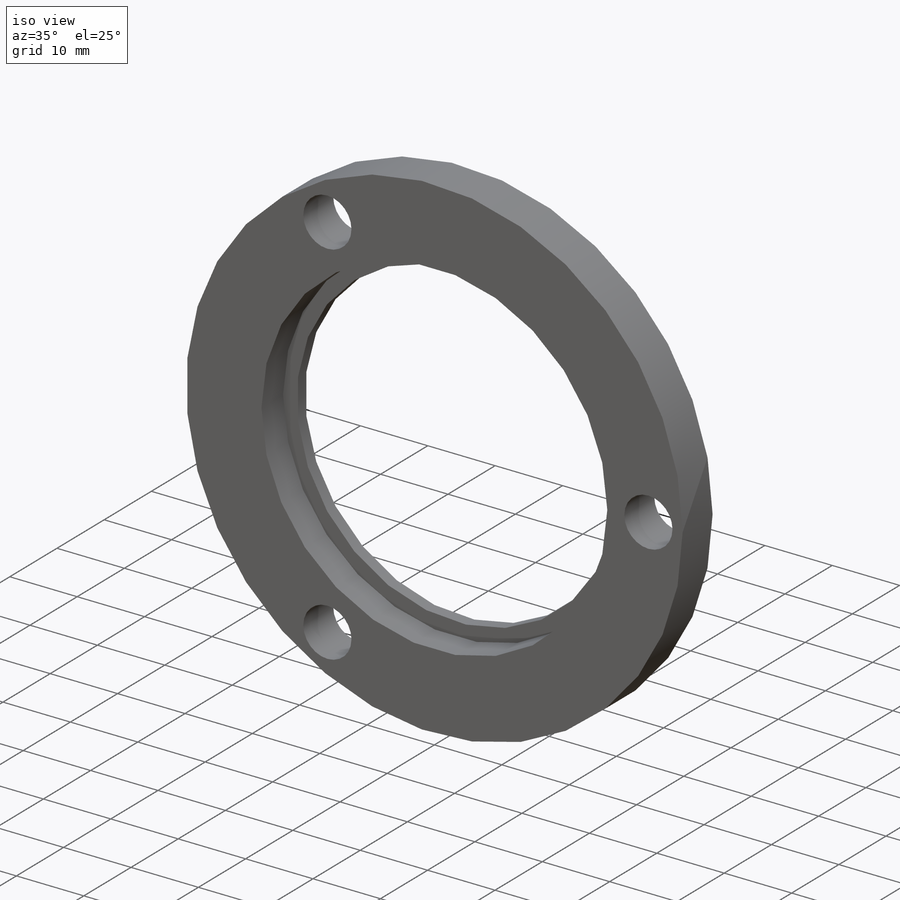
[diagram: iso view]
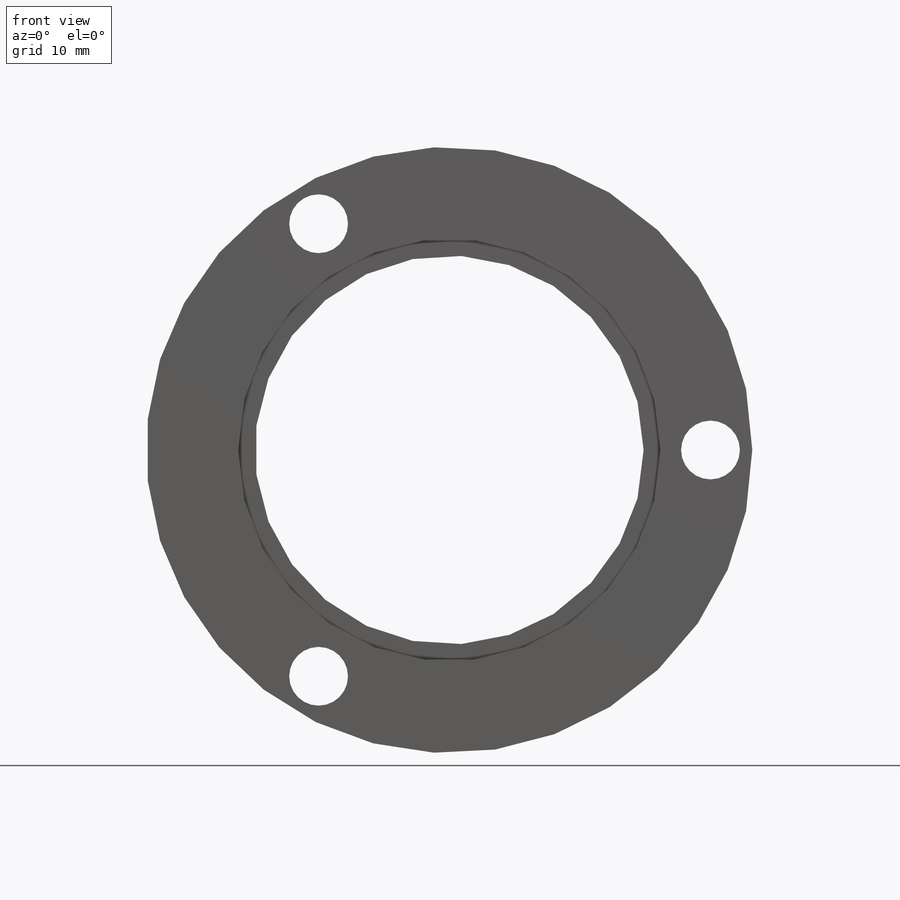
[diagram: front view]
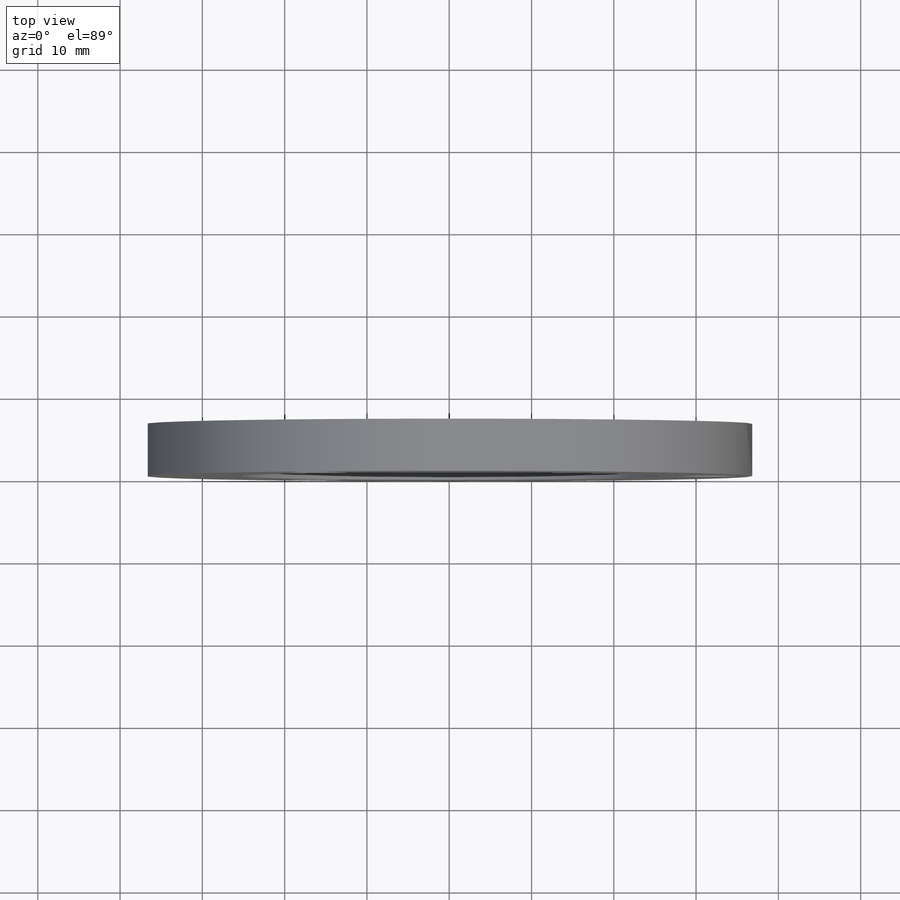
[diagram: top view]
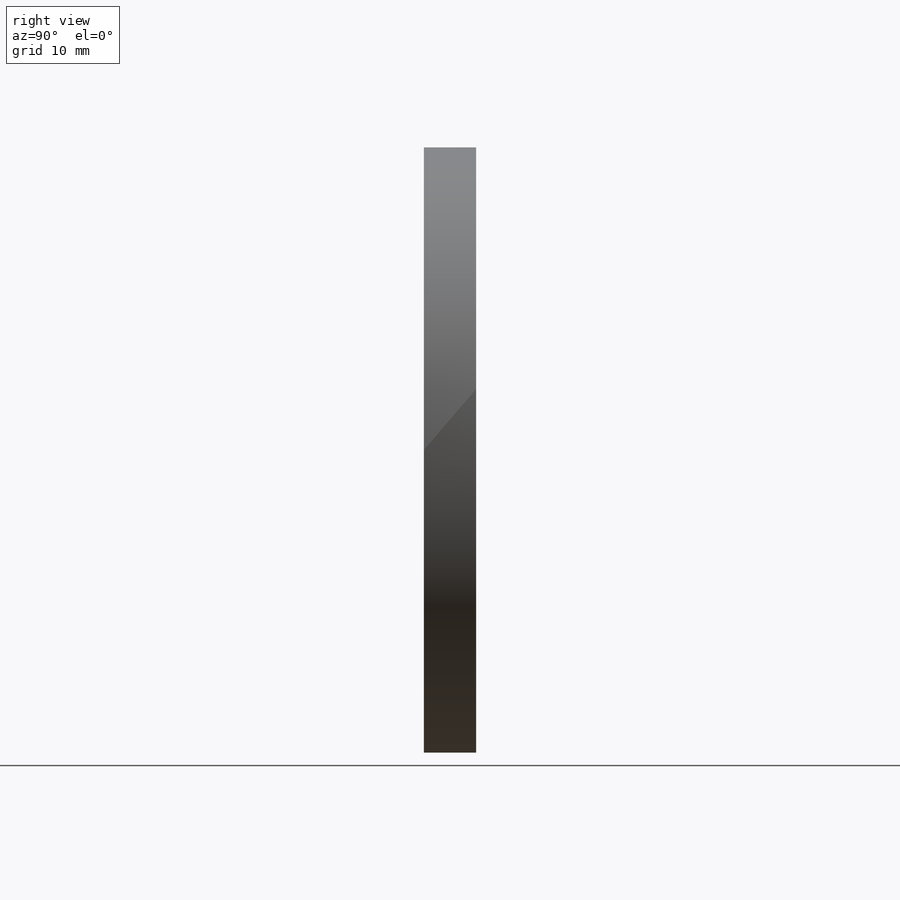
[diagram: right view]
SOLIDWORKS PART (.sldprt)
format: sldprt  version: not decoded by parser v0  size: 372,224 bytes
history: native  units: mm
features: sketch x4, material x1, extrude x1, cut_extrude x1, hole x1 + 1 further entry (+11 scaffold rows collapsed)
feature tree (20):
  scaffold x11  (default folders/planes/origin — collapsed)
  material  "6061-T6 Al"
  "Origin"  ID=392984584
  sketch  "Sketch"  dims[c1.D5=3.048mm c1.D6=3.048mm c1.D7=~1.947748mm c2.D6=3.048mm c2.D7=~2.392707mm c2.D5=2.8448mm c3.D6=3.048mm c3.D7=3.048mm c3.D8=1.5875mm c3.D9=4.7625mm c3.D10=2.54mm c3.D12=3.048mm c3.D13=6.604mm c3.D16=1.5875mm c3.D19=~2.38125mm c4.D9=3.175mm c4.D19=3.048mm c4.D22=2.54mm c4.D23=5.4102mm c4.D14=2.54mm c4.D3=990.6mm c4.D4=990.6mm c5.D3=990.6mm c5.D1=990.6mm c5.D2=917.575mm c6.D1=807.72mm c6.D2=12.7mm c6.D4=12.7mm c6.D5=38.1mm c6.D6=340.36mm c6.D7=38.1mm c6.D8=340.36mm c7.D7=6.35mm c7.D2=51.308mm c7.D3=73.66mm c7.D4=6.35mm c7.D5=47.244mm c7.D1=~102.901114mm c8.D2=~79.998856mm c8.D1=46.228mm c9.D2=57.15mm c9.D3=~35.706034mm c9.D4=~31.234425mm c10.D3=40.64mm c10.D4=40.64mm c10.D6=3.81mm c10.D7=6.096mm c11.D6=3.81mm c11.D7=3.048mm c11.D5=3.81mm c12.D7=~49.253342mm c12.D8=~37.691316mm c13.D7=50.8mm c13.D8=40.64mm c13.D6=33.02mm c14.D7=35.56mm c14.D1=50.8mm c14.D4=45.72mm c14.D8=~4.213439mm c15.D8=45.0deg c15.D10=0.254mm c15.D12=6.096mm c15.D14=6.223mm c15.D15=1.778mm c15.D16=1.524mm c15.D17=1.524mm c15.D18=57.15mm c15.D19=~0.697452mm c15.D20=~41.386999mm c16.D19=~0.697452mm c16.D8=~34.56784mm c17.D8=45.0deg c17.D20=~36.155415mm c17.D21=2.159mm c17.D22=~4.15925mm c18.D21=2.159mm c18.D15=1.143mm c18.D12=3.556mm c18.D19=3.556mm c18.D20=46.482mm c19.D21=46.482mm c19.D12=3.81mm c19.D19=3.81mm c19.D24=0.381mm c19.D6=0.508mm c19.D11=1.143mm c19.D14=~3.950315mm c19.D8=135.0deg c19.D17=~3.592102mm c20.D8=~5.586589mm c21.D8=45.0deg c21.D14=~30.176994mm c22.D14=135.0deg c22.D17=~5.930302mm c22.D8=135.0deg c23.D14=~3.592102mm c23.D8=~2.435377mm c24.D8=45.0deg c24.D14=0.508mm c24.D6=0.508mm c24.D17=47.244mm c24.D1=571.5mm c24.D2=304.8mm c24.D3=279.4mm c24.D4=279.4mm c24.D5=19.05mm c25.D6=19.05mm c25.D5=19.05mm c26.D6=19.05mm c26.D5=19.05mm c27.D6=19.05mm c27.D5=19.05mm c28.D6=~34.655305mm c28.D5=~34.655305mm c29.D6=~34.655305mm c29.D5=~34.655305mm c30.D6=~34.655305mm c30.D5=~34.655305mm c31.D6=12.7mm c31.D5=12.7mm c32.D6=12.7mm c32.D5=12.7mm c32.D3=25.4mm c32.D4=~35.921024mm c33.D5=25.4mm c33.D3=38.1mm c33.D4=42.9895mm c34.D5=304.8mm c34.D6=279.4mm c34.D7=279.4mm c35.D6=279.4mm c35.D7=279.4mm c36.D6=279.4mm c36.D7=279.4mm c37.D6=279.4mm c37.D7=279.4mm c38.D6=279.4mm c38.D7=279.4mm c39.D6=279.4mm c39.D7=279.4mm c40.D6=279.4mm c40.D7=279.4mm c41.D6=279.4mm c41.D7=279.4mm c42.D6=279.4mm c42.D7=279.4mm c43.D6=279.4mm c43.D7=279.4mm c44.D6=279.4mm c44.D2=279.4mm c44.D5=~283.980633mm c45.D6=279.4mm c45.D2=42.9895mm c45.D5=38.1mm c45.D3=38.1mm c46.D5=38.1mm c46.D2=190.5mm c46.D4=~81.373519mm c47.D4=5.0deg c47.D5=~81.373519mm c48.D5=10.0deg c48.D6=72.39mm c48.D3=72.39mm c49.D3=35.0deg c49.D5=10.0deg c49.D6=~216.182205mm c50.D6=37.5deg c50.D7=152.4mm c50.D8=228.6mm c51.D6=~181.360574mm c52.D6=80.0deg c52.D3=~330.928744mm c53.D3=120.0deg c53.D4=406.4mm c53.D7=200.0mm c53.D8=80.0mm c53.D5=80.0mm c54.D7=400.0mm c54.D1=13.97mm c54.D2=12.7mm c54.D3=63.5mm c54.D4=57.912mm c54.D5=128.524mm c54.D6=50.8mm c55.D1=31.75mm c55.D6=0.508mm c55.D11=1.778mm c55.D14=5.334mm c55.D15=1.27mm c55.D22=0.254mm]
  extrude  "Boss-Extrude1"  Depth=6.35mm
  sketch  "Sketch1"
  cut_extrude  "Cut-Extrude1"  Depth=1.778mm
  hole  "1/4 Clearance Hole1"  Diameter=7.14248mm Depth=6.35mm
  sketch  "Sketch3"  dims[D1=3.0]
  sketch  "Sketch2"  dims[hole-wizard template sketch: 60 standard entries collapsed; hole parameters kept: c18.Thru Hole Depth=6.35mm]
decode coverage: 6 of 7 modeling features carry decoded parameters; 1 rows unclassified (native names shown)
note: ~ marks probable driven/reference dimensions
note: suppression state not decoded; provenance and decode notes live in map.json
